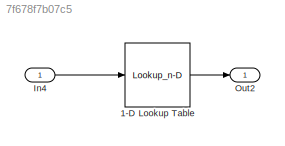
MODEL slx_7f678f7b07c5
KIND model
CONFIG AbsTol = auto
CONFIG EnableMultiTasking = on
CONFIG FixedStep = 0.200000
CONFIG MaxStep = auto
CONFIG MinStep = auto
CONFIG RelTol = 1e-3
CONFIG SampleTimeConstraint = Unconstrained
CONFIG Solver = FixedStepDiscrete
CONFIG SolverName = FixedStepDiscrete
CONFIG StartTime = 0.0
CONFIG StopTime = 10.0
WORKSPACE source: MAT-file member
WORKSPACE input_struct: struct (value not decoded)
BLOCK [Lookup_n-D] 1-D Lookup Table
  BreakpointsForDimension1 = [0:0.1:2*pi]
  ExtrapMethod = Clip
  InternalRulePriority = Speed
  InterpMethod = Nearest
  NumberOfTableDimensions = 1
  OutDataTypeStr = uint8
  Ports = [1, 1]
  RndMeth = Simplest
  Table = cos([0:0.1:2*pi])
BLOCK [Inport] In4
  IconDisplay = Port number
BLOCK [Outport] Out2
  IconDisplay = Port number
LINE 1-D Lookup Table:1 -> Out2:1
LINE In4:1 -> 1-D Lookup Table:1
